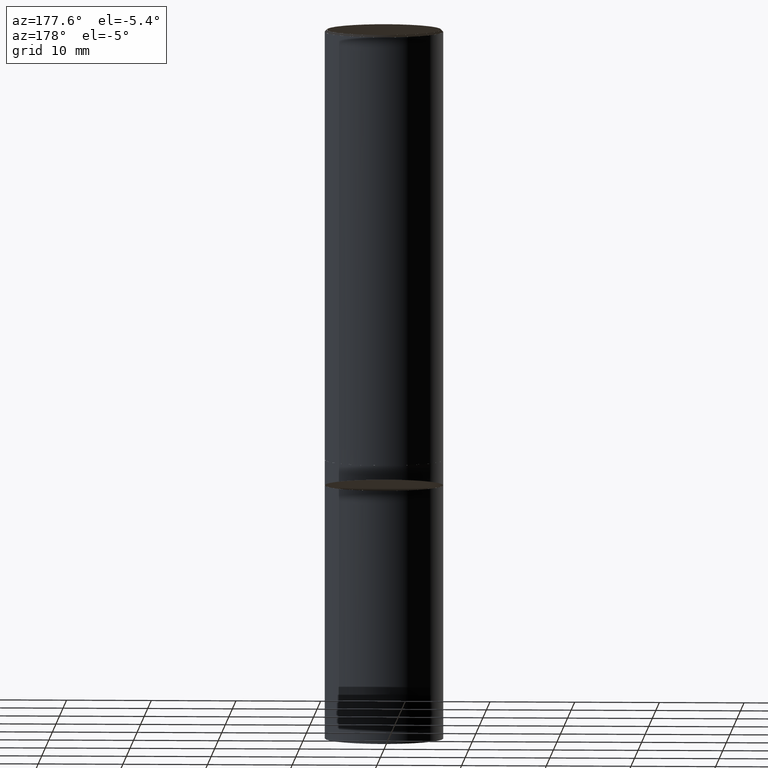
[diagram: clean part render]
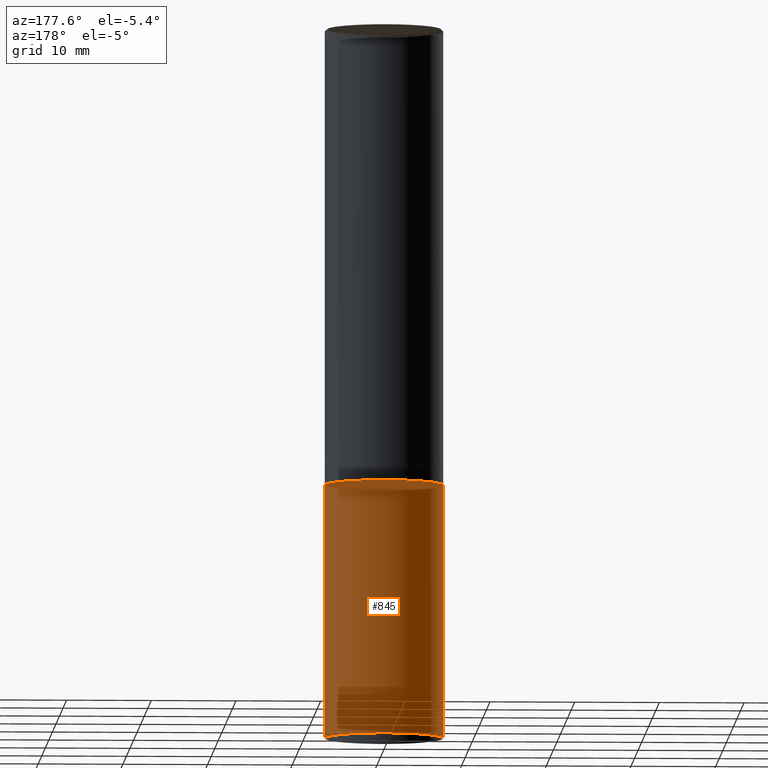
[diagram: same view with one face highlighted and labeled with its STEP entity id]
A machine part, auxiliary view. The second image highlights one B-rep face of the part: STEP entity #845.
In plain terms, the highlighted face is a freeform B-spline surface patch.
Its self-contained STEP definition (entity closure, byte-faithful):
#763=CARTESIAN_POINT('',(7.0,0.0,-33.0));
#764=CARTESIAN_POINT('',(7.0,7.0,-33.0));
#765=CARTESIAN_POINT('',(0.0,7.0,-33.0));
#766=CARTESIAN_POINT('',(-7.0,7.0,-33.0));
#767=CARTESIAN_POINT('',(-7.0,0.0,-33.0));
#768=CARTESIAN_POINT('',(7.0,0.0,-3.0));
#769=CARTESIAN_POINT('',(7.0,7.0,-3.0));
#770=CARTESIAN_POINT('',(0.0,7.0,-3.0));
#771=CARTESIAN_POINT('',(-7.0,7.0,-3.0));
#772=CARTESIAN_POINT('',(-7.0,0.0,-3.0));
#826=(
BOUNDED_SURFACE()
B_SPLINE_SURFACE(1,2,(
(#763,#764,#765,#766,#767),
(#768,#769,#770,#771,#772)
), .UNSPECIFIED.,.F.,.F.,.F.)
B_SPLINE_SURFACE_WITH_KNOTS((2,2),(3,2,3),(
0.0,1.0),(
0.0,0.5,1.0), .UNSPECIFIED.)
GEOMETRIC_REPRESENTATION_ITEM()
RATIONAL_B_SPLINE_SURFACE(((1.0,0.707106781187,1.0,0.707106781187,1.0),
(1.0,0.707106781187,1.0,0.707106781187,1.0)
))
REPRESENTATION_ITEM('')
SURFACE()
);
#827=(
BOUNDED_CURVE()
B_SPLINE_CURVE(2,(#767,#766,#765,#764,#763),.UNSPECIFIED.,.F.,.F.)
B_SPLINE_CURVE_WITH_KNOTS((3,2,3),
(0.0,0.5,1.0),.UNSPECIFIED.)
CURVE()
GEOMETRIC_REPRESENTATION_ITEM()
RATIONAL_B_SPLINE_CURVE((1.0,0.707106781187,1.0,0.707106781187,1.0))
REPRESENTATION_ITEM('')
);
#828=(
BOUNDED_CURVE()
B_SPLINE_CURVE(1,(#763,#768),.UNSPECIFIED.,.F.,.F.)
B_SPLINE_CURVE_WITH_KNOTS((2,2),
(0.0,1.0),.UNSPECIFIED.)
CURVE()
GEOMETRIC_REPRESENTATION_ITEM()
RATIONAL_B_SPLINE_CURVE((1.0,1.0))
REPRESENTATION_ITEM('')
);
#829=(
BOUNDED_CURVE()
B_SPLINE_CURVE(2,(#768,#769,#770,#771,#772),.UNSPECIFIED.,.F.,.F.)
B_SPLINE_CURVE_WITH_KNOTS((3,2,3),
(0.0,0.5,1.0),.UNSPECIFIED.)
CURVE()
GEOMETRIC_REPRESENTATION_ITEM()
RATIONAL_B_SPLINE_CURVE((1.0,0.707106781187,1.0,0.707106781187,1.0))
REPRESENTATION_ITEM('')
);
#830=(
BOUNDED_CURVE()
B_SPLINE_CURVE(1,(#772,#767),.UNSPECIFIED.,.F.,.F.)
B_SPLINE_CURVE_WITH_KNOTS((2,2),
(0.0,1.0),.UNSPECIFIED.)
CURVE()
GEOMETRIC_REPRESENTATION_ITEM()
RATIONAL_B_SPLINE_CURVE((1.0,1.0))
REPRESENTATION_ITEM('')
);
#831=VERTEX_POINT('',#763);
#832=VERTEX_POINT('',#767);
#833=VERTEX_POINT('',#768);
#834=VERTEX_POINT('',#772);
#835=EDGE_CURVE('',#832,#831,#827,.T.);
#836=EDGE_CURVE('',#831,#833,#828,.T.);
#837=EDGE_CURVE('',#833,#834,#829,.T.);
#838=EDGE_CURVE('',#834,#832,#830,.T.);
#839=ORIENTED_EDGE('',*,*,#835,.T.);
#840=ORIENTED_EDGE('',*,*,#836,.T.);
#841=ORIENTED_EDGE('',*,*,#837,.T.);
#842=ORIENTED_EDGE('',*,*,#838,.T.);
#843=EDGE_LOOP('',(#839,#840,#841,#842));
#844=FACE_OUTER_BOUND('',#843,.T.);
#845=ADVANCED_FACE('',(#844),#826,.T.);